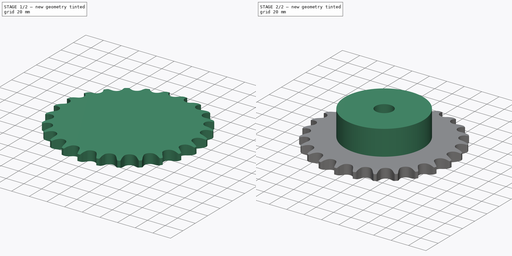
[diagram: build sequence overview — one tinted view per stage of 2, left to right]
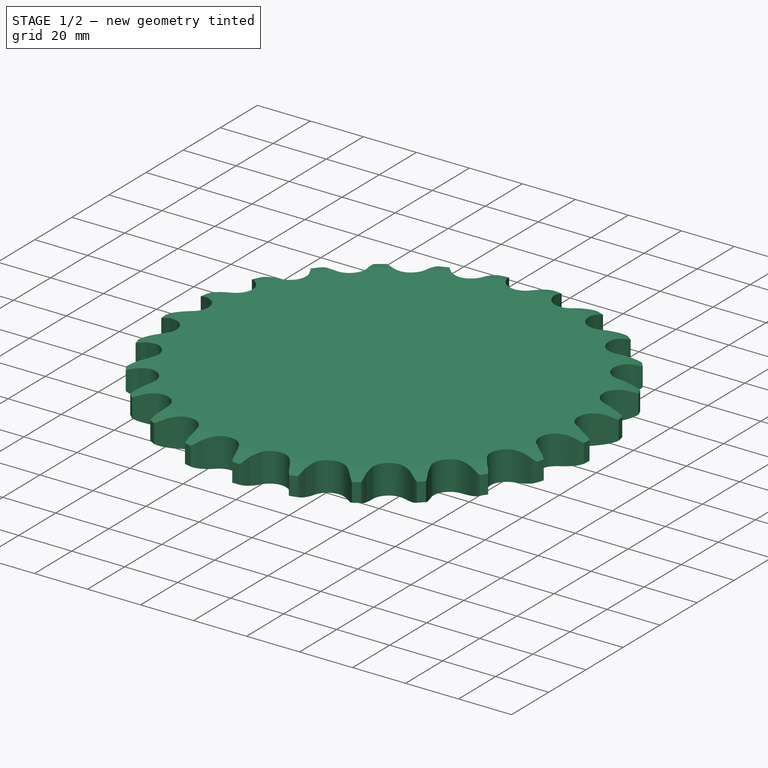
[diagram: stage 1 of 2 — iso view after this stage's code; geometry added in this stage tinted green]
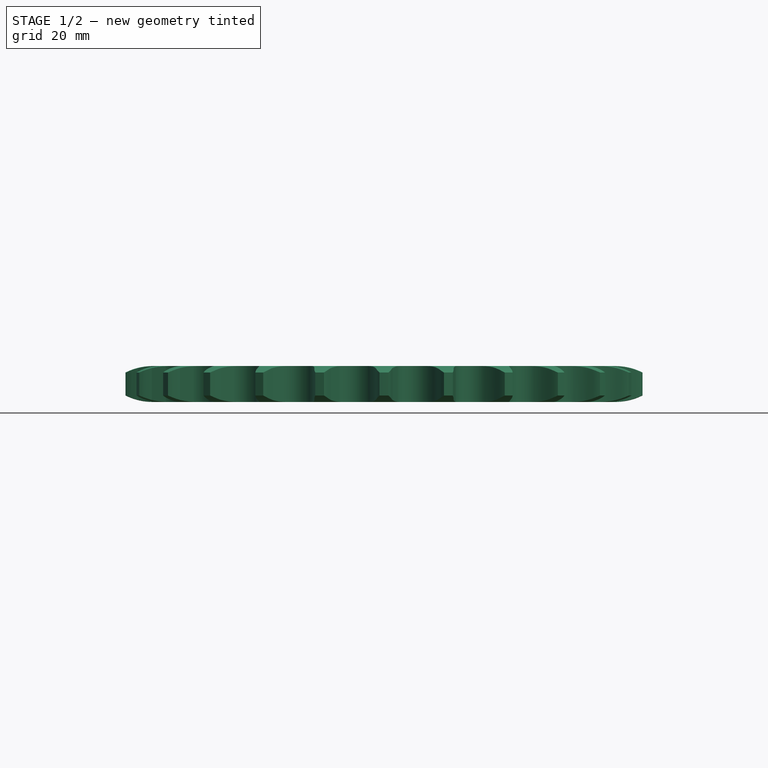
[diagram: stage 1 of 2 — front view after this stage's code; geometry added in this stage tinted green]
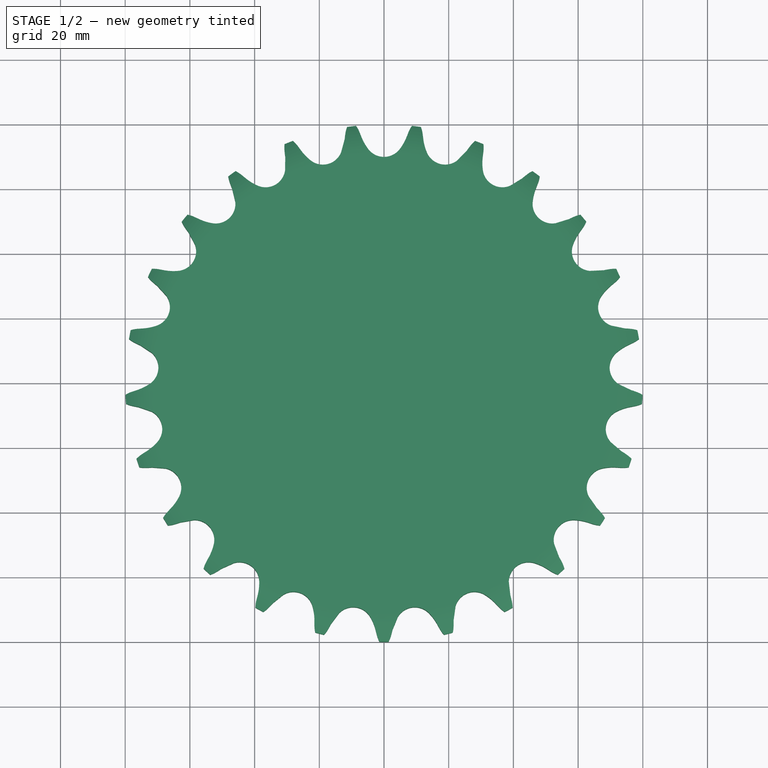
[diagram: stage 1 of 2 — top view after this stage's code; geometry added in this stage tinted green]
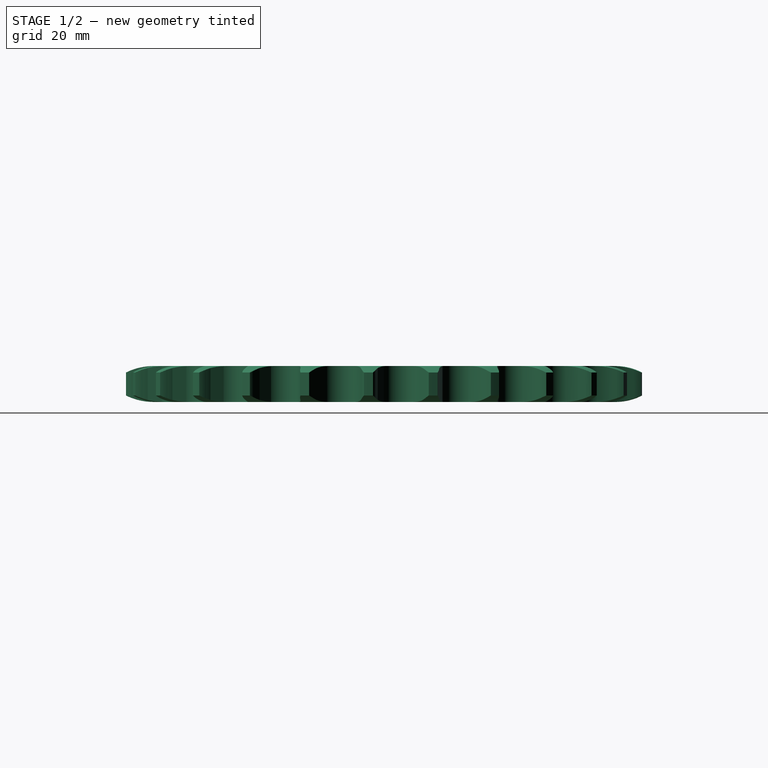
[diagram: stage 1 of 2 — right view after this stage's code; geometry added in this stage tinted green]
FCSTD DOCUMENT  (FreeCAD 0.19R24291 (Git))
Label: Sprocket ANSI simplex ¾x⁷⁄₁₆ z25
License: CC BY 3.0
LicenseURL: http://creativecommons.org/licenses/by/3.0/
objects: Sketcher::SketchObject×3, PartDesign::Pad×2, Spreadsheet::Sheet×1, Part::Part2DObjectPython×1, PartDesign::Groove×1, PartDesign::Pocket×1, PartDesign::Body×1, App::Part×1
note: 13 computed .brp shape members not serialized (recipe doc carries the construction recipe); baked Part::Feature solids carry a one-line shape summary decoded from their .brp

FEATURE [Spreadsheet::Sheet] Spreadsheet  label="Data"
  cells = A1=P (Pitch); B1=Wc (Chain width); C1=Dr (Roller diameter); D1=Tr (Tooth radius); E1=Rw (Radius width); F1=Wt (Tooth width); G1=z (Number of teeth); H1=De (External Diameter); I1=Dp (pitch diameter); J1=d (Hub diameter); K1=D (Hole diameter); L1=H (Total height); A2(P)==19.05mm; B2(Wc)==11.68mm; C2(Dr)==12.07mm; D2(Tr)==19mm; E2(Rw)==2mm; F2(Wt)==11.1mm; G2(z)=25; H2(De)==160mm; I2(Dp)==152mm; J2(d)==90mm; K2(D)==20mm; L2(H)==40mm
FEATURE [Part::Part2DObjectPython] Sprocket  label="Teeth sketch"  # Draft 2D object (typed FeaturePython)
  ANSISize = 60
  NumberOfTeeth = 25
  Pitch = 19.05
  RollerDiameter = 12.07
  expr: RollerDiameter = <<Data>>.Dr
  expr: Pitch = <<Data>>.P
  expr: NumberOfTeeth = <<Data>>.z
FEATURE [PartDesign::Pad] Pad  label="Teeth"
  Direction = (1,1,1)
  Length = 11.1
  Length2 = 100
  Profile = -> Sprocket
  Type = 0
  expr: Length = <<Data>>.Wt
FEATURE [Sketcher::SketchObject] Sketch  label="Radius"
  FullyConstrained = true
  MapMode = 5
  Placement = pos=(0,0,0) rot=(1,0,0;1.5708rad)
  Support = -> [XZ_Plane]
  expr: .Constraints.Tr = <<Data>>.Tr
  expr: .Constraints.Wt = <<Data>>.Wt
  expr: .Constraints.Re = <<Data>>.De / 2
  expr: .Constraints.Rw = <<Data>>.Rw
  sketch-geometry (10):
    g0: LineSegment StartX=71.5147 StartY=0 StartZ=0 EndX=80 EndY=0 EndZ=0
    g1: LineSegment StartX=80 StartY=0 StartZ=0 EndX=80 EndY=2 EndZ=0
    g2: ArcOfCircle CenterX=71.5147 CenterY=19 CenterZ=0 NormalX=0 NormalY=0 NormalZ=1 AngleXU=0 Radius=19 StartAngle=4.71239 EndAngle=5.17534
    g3: LineSegment StartX=80 StartY=2 StartZ=0 EndX=80 EndY=9.1 EndZ=0
    g4: LineSegment StartX=71.5147 StartY=11.1 StartZ=0 EndX=80 EndY=11.1 EndZ=0
    g5: LineSegment StartX=80 StartY=11.1 StartZ=0 EndX=80 EndY=9.1 EndZ=0
    g6: ArcOfCircle CenterX=71.5147 CenterY=-7.9 CenterZ=0 NormalX=0 NormalY=0 NormalZ=1 AngleXU=0 Radius=19 StartAngle=1.10784 EndAngle=1.5708
    g7: LineSegment StartX=80 StartY=11.1 StartZ=0 EndX=88.4853 EndY=11.1 EndZ=0
    g8: LineSegment StartX=88.4853 StartY=11.1 StartZ=0 EndX=88.4853 EndY=0 EndZ=0
    g9: LineSegment StartX=88.4853 StartY=0 StartZ=0 EndX=80 EndY=0 EndZ=0
  constraints (28):
    c: PointOnObject(g0,g-1)
    c: Horizontal(g0)
    c: Coincident(g0,g1)
    c: Vertical(g1)
    c: Tangent(g2,g0) = -1.5708
    c: Coincident(g2,g1)
    c: Coincident(g3,g1)
    c: Vertical(g3)
    c: Horizontal(g4)
    c: Coincident(g4,g5)
    c: Vertical(g5)
    c: Coincident(g6,g5)
    c: Tangent(g6,g4) = 1.5708
    c: Coincident(g5,g3)
    c: Equal(g2,g6)
    c: Equal(g5,g1)
    c: Radius(g2) = 19  'Tr'
    c: DistanceY(g0,g4) = 11.1  'Wt'
    c: DistanceX(g0) = 80  'Re'
    c: DistanceY(g1,g1) = 2  'Rw'
    c: Coincident(g4,g7)
    c: Coincident(g7,g8)
    c: Vertical(g8)
    c: Coincident(g8,g9)
    c: Coincident(g9,g0)
    c: Horizontal(g7)
    c: Horizontal(g9)
    c: Equal(g0,g9)
FEATURE [PartDesign::Groove] Groove  label="Teeth Radius"
  Angle = 360
  Axis = (-3e-16,3e-16,1)
  Base = (0,0,0)
  BaseFeature = -> Pad
  Profile = -> Sketch
  ReferenceAxis = -> Z_Axis
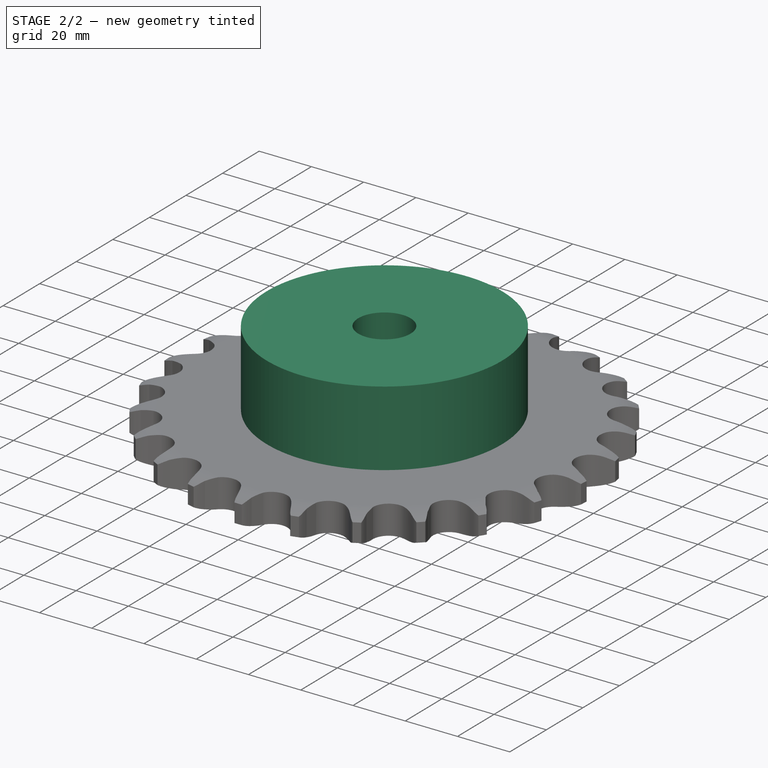
[diagram: stage 2 of 2 — iso view after this stage's code; geometry added in this stage tinted green]
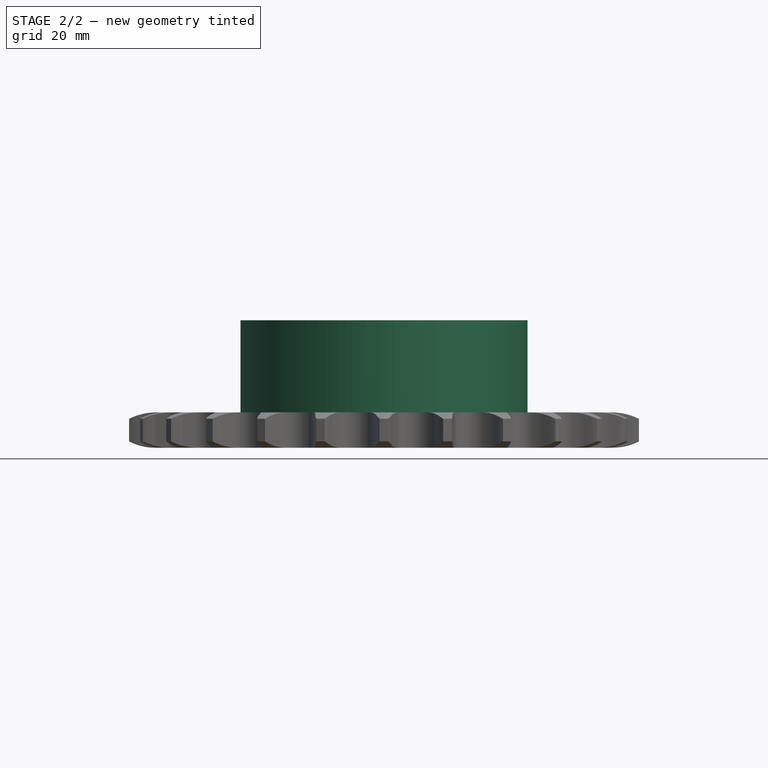
[diagram: stage 2 of 2 — front view after this stage's code; geometry added in this stage tinted green]
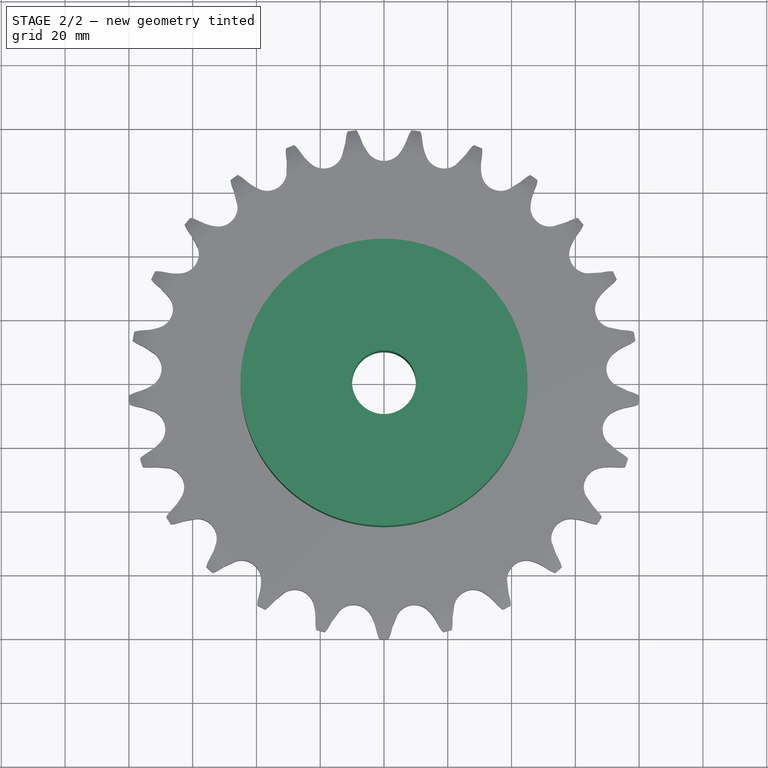
[diagram: stage 2 of 2 — top view after this stage's code; geometry added in this stage tinted green]
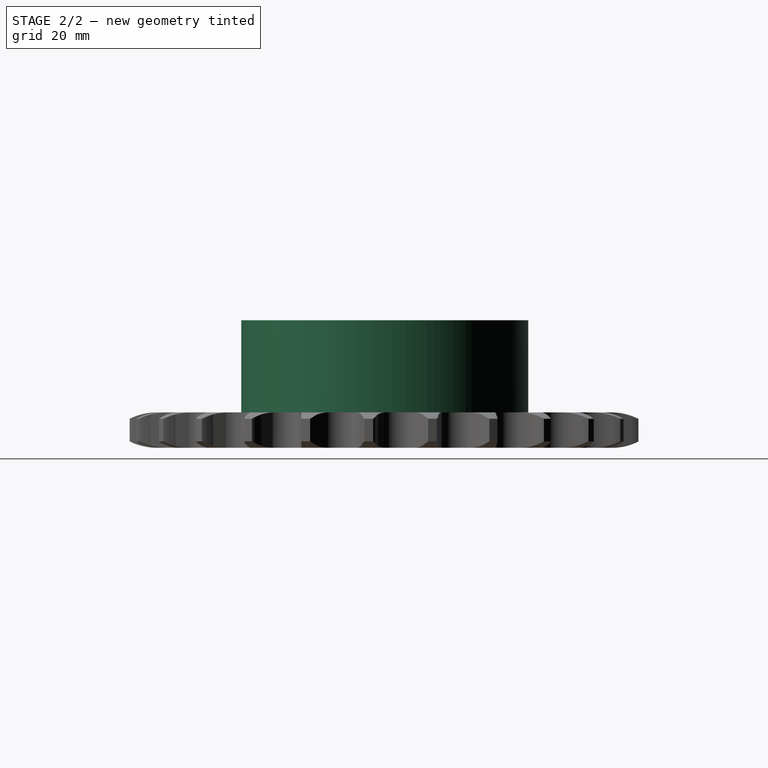
[diagram: stage 2 of 2 — right view after this stage's code; geometry added in this stage tinted green]
FEATURE [Sketcher::SketchObject] Sketch001  label="Hub sketch"
  FullyConstrained = true
  MapMode = 5
  Support = -> [XY_Plane]
  expr: .Constraints.d = <<Data>>.d
  sketch-geometry (1):
    g0: Circle CenterX=0 CenterY=0 CenterZ=0 NormalX=0 NormalY=0 NormalZ=1 AngleXU=0 Radius=45
  constraints (2):
    c: Coincident(g0,g-1)
    c: Diameter(g0) = 90  'd'
FEATURE [PartDesign::Pad] Pad001  label="Hub"
  BaseFeature = -> Groove
  Direction = (1,1,1)
  Length = 40
  Length2 = 100
  Profile = -> Sketch001
  Type = 0
  expr: Length = <<Data>>.H
FEATURE [Sketcher::SketchObject] Sketch002  label="Hole sketch"
  FullyConstrained = true
  MapMode = 5
  Support = -> [XY_Plane]
  expr: .Constraints.D = <<Data>>.D
  sketch-geometry (1):
    g0: Circle CenterX=0 CenterY=0 CenterZ=0 NormalX=0 NormalY=0 NormalZ=1 AngleXU=0 Radius=10
  constraints (2):
    c: Coincident(g0,g-1)
    c: Diameter(g0) = 20  'D'
FEATURE [PartDesign::Pocket] Pocket  label="Hole"
  BaseFeature = -> Pad001
  Length = 5
  Length2 = 100
  Midplane = true
  Profile = -> Sketch002
  Type = 1
FEATURE [PartDesign::Body] Body  label="Sprocket"
  Group = -> [Sprocket,Pad,Sketch,Groove,Sketch001,Pad001,Sketch002,Pocket]
  Origin = -> Origin
  Tip = -> Pocket
FEATURE [App::Part] Part  label="Sprocket ANSI simplex ¾x⁷⁄₁₆ z25"
  Group = -> [Body]
  Origin = -> Origin001
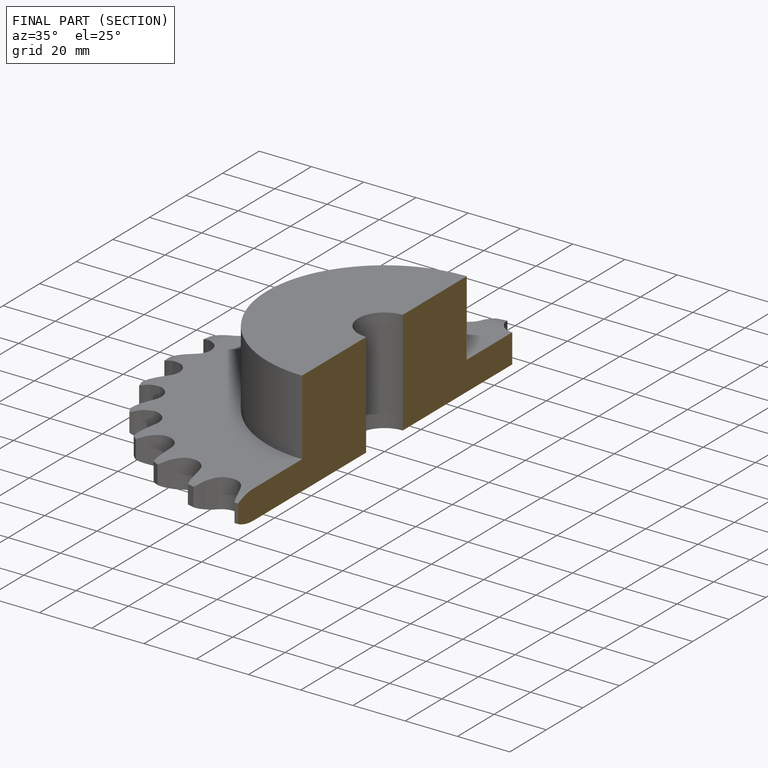
[diagram: finished part — half-section view (interior)]
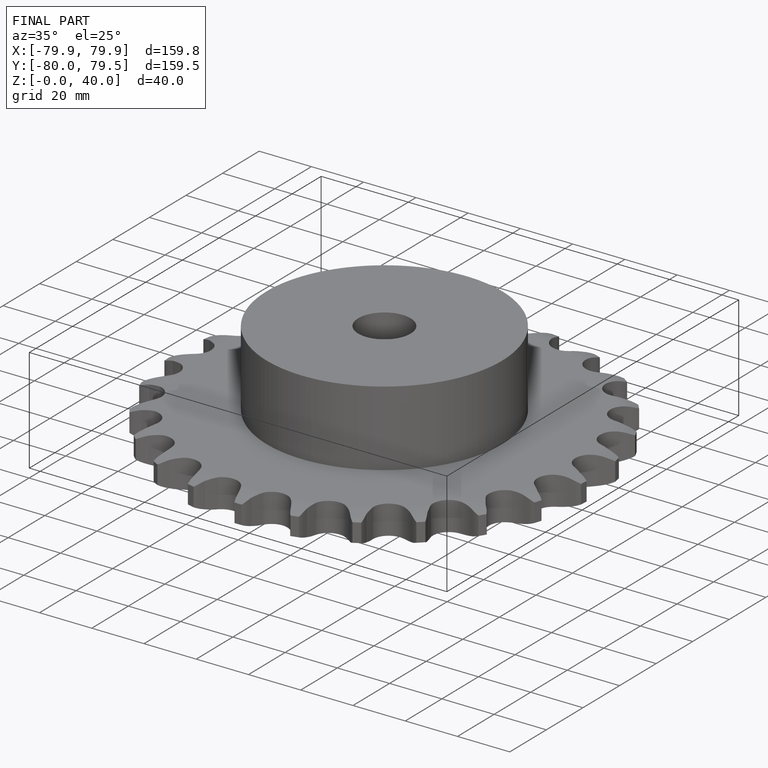
[diagram: finished part — iso view with bounding-box wireframe]
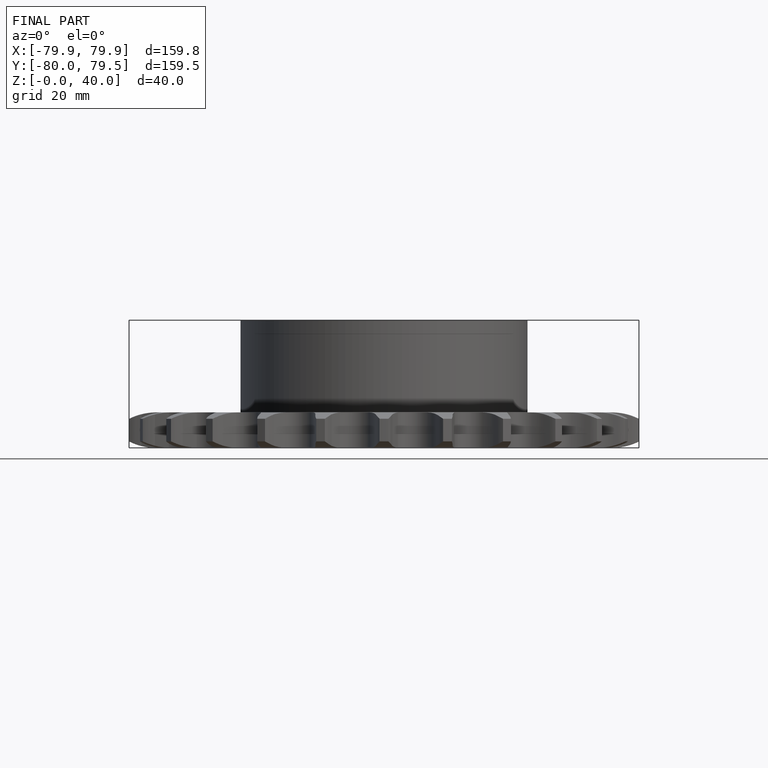
[diagram: finished part — front view with bounding-box wireframe]
